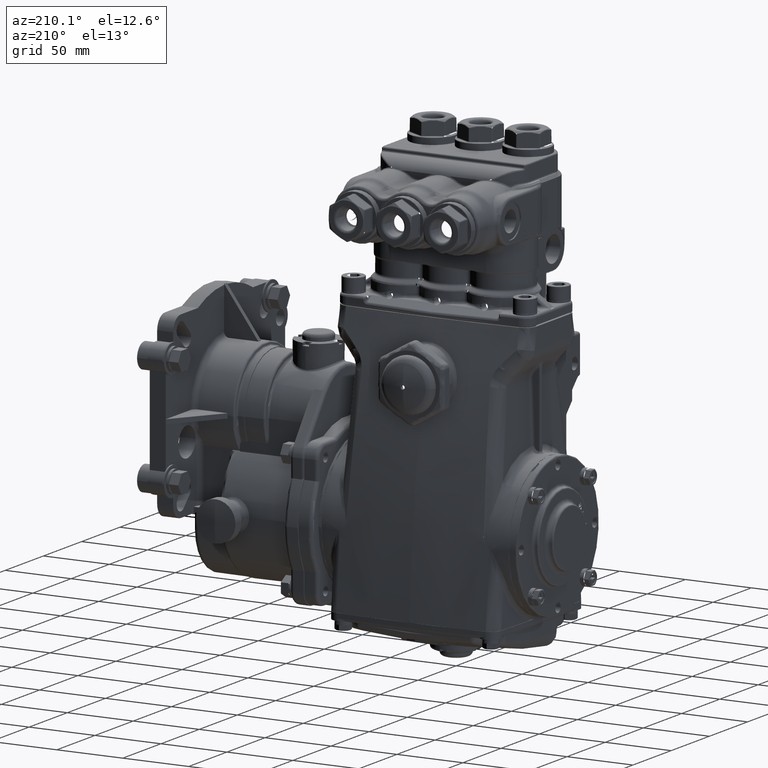
[diagram: clean part render]
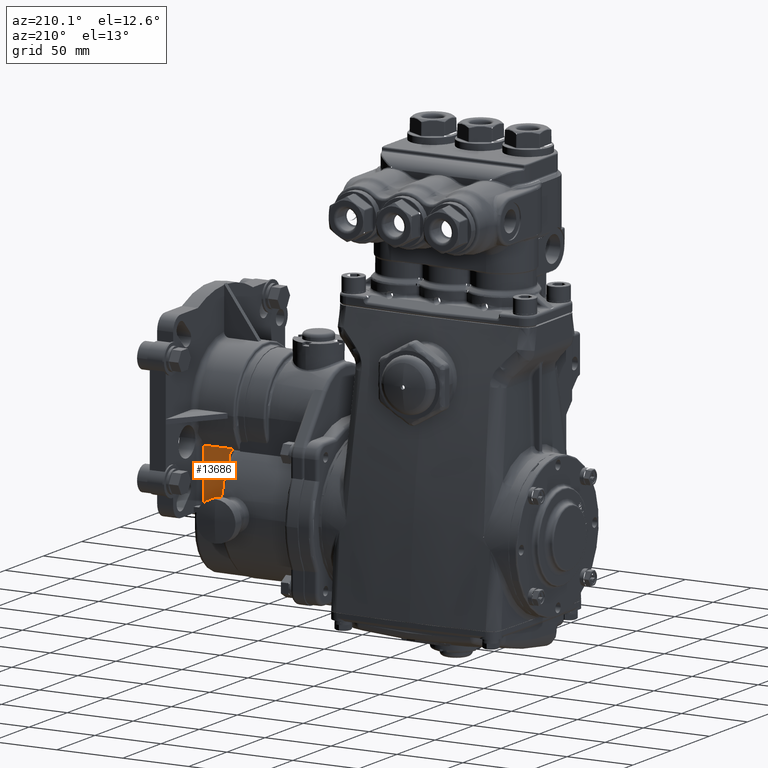
[diagram: same view with one face highlighted and labeled with its STEP entity id]
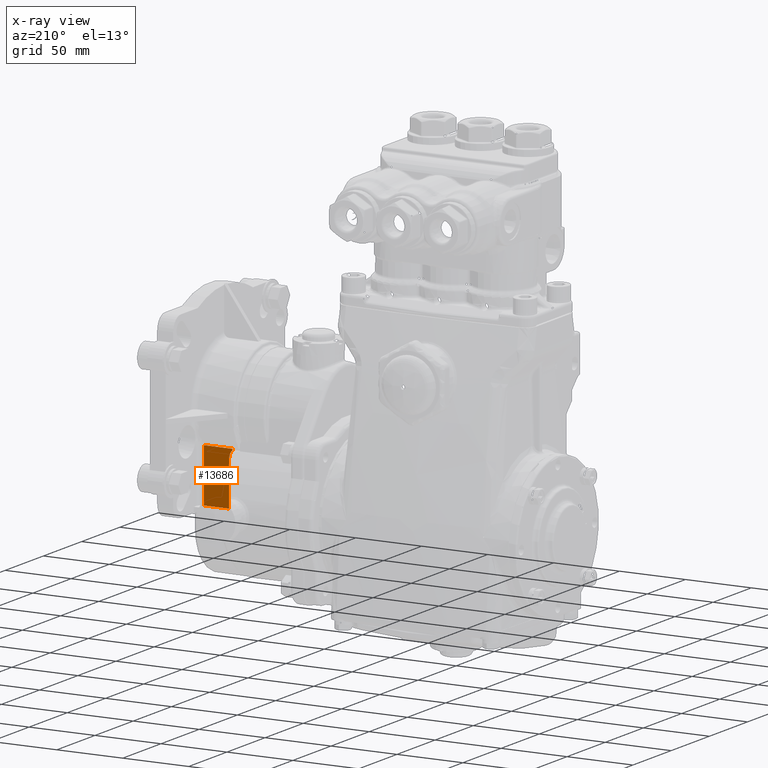
[diagram: x-ray of the same camera — body ghosted, the highlighted face saturated]
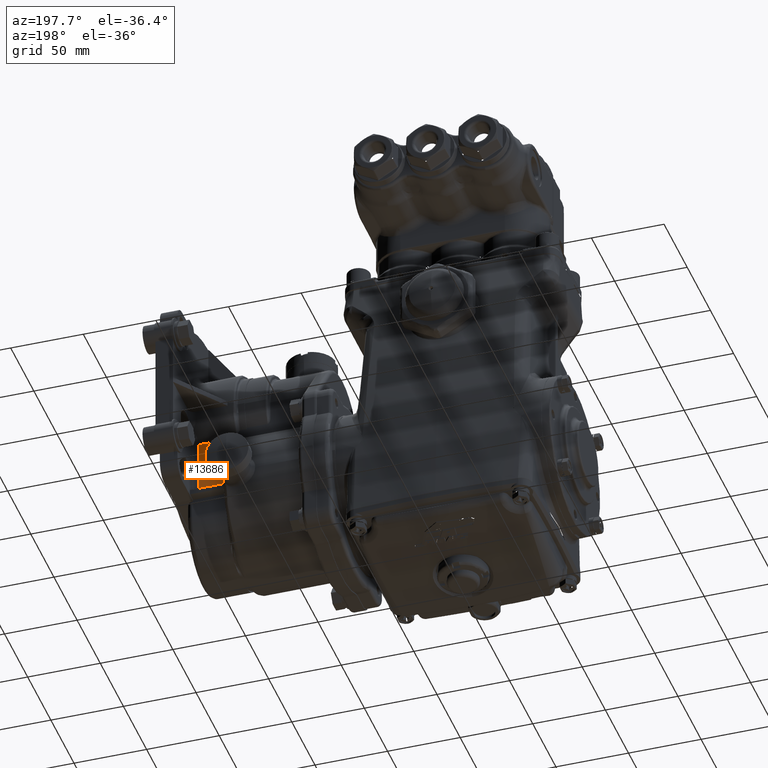
[diagram: same view with one face highlighted and labeled with its STEP entity id]
A machine part, auxiliary view. The second image highlights one B-rep face of the part: STEP entity #13686.
The next image is the same camera in x-ray: the body ghosted, the highlighted face saturated — about 0% of this face is hidden behind the body in this view.
A second angle (auxiliary view) of the same face is appended — the face is thin or edge-on in the first view.
In plain terms, the highlighted planar face has unit normal (-0, 1, 0).
Its self-contained STEP definition (entity closure, byte-faithful):
#1515 = CARTESIAN_POINT ( 'NONE',  ( 5.936998685975653167, 1.374999999999993561, 1.478393000945636304 ) ) ;
#3409 = CARTESIAN_POINT ( 'NONE',  ( 5.984173228346457485, 1.374999999999993117, 1.289207508510556321 ) ) ;
#4364 = LINE ( 'NONE', #30344, #121863 ) ;
#5307 = VERTEX_POINT ( 'NONE', #3409 ) ;
#6356 = VERTEX_POINT ( 'NONE', #9939 ) ;
#6761 = CARTESIAN_POINT ( 'NONE',  ( 6.738275590551182859, 1.374999999999993117, -0.01600000000000988132 ) ) ;
#6861 = CARTESIAN_POINT ( 'NONE',  ( 5.884173228346457840, 1.374999999999993117, 1.539699161006940820 ) ) ;
#9939 = CARTESIAN_POINT ( 'NONE',  ( 6.738275590551182859, 1.374999999999993117, -0.01600000000000988132 ) ) ;
#10766 = CARTESIAN_POINT ( 'NONE',  ( 5.953063110795142165, 1.374999999999993339, 1.447358749938365552 ) ) ;
#12601 = CARTESIAN_POINT ( 'NONE',  ( 5.974511354999098245, 1.374999999999993339, 1.381563688716898497 ) ) ;
#13686 = ADVANCED_FACE ( 'NONE', ( #111877 ), #27088, .T. ) ;
#14910 = CARTESIAN_POINT ( 'NONE',  ( 5.957550967512354134, 1.374999999999993117, 1.436722267087785054 ) ) ;
#15089 = ORIENTED_EDGE ( 'NONE', *, *, #62207, .T. ) ;
#17056 = LINE ( 'NONE', #35587, #22284 ) ;
#21840 = ORIENTED_EDGE ( 'NONE', *, *, #57068, .T. ) ;
#22284 = VECTOR ( 'NONE', #120376, 39.37007874015748143 ) ;
#27088 = PLANE ( 'NONE',  #47404 ) ;
#27215 = CARTESIAN_POINT ( 'NONE',  ( 5.917199309192588963, 1.374999999999993339, 1.506953825793217572 ) ) ;
#30344 = CARTESIAN_POINT ( 'NONE',  ( 0.5505628188770932407, 1.374999999999993117, -0.01600000000000988132 ) ) ;
#32457 = DIRECTION ( 'NONE',  ( -1.000000000000000000, -7.102626545835169598E-19, 4.324783731851683387E-18 ) ) ;
#35587 = CARTESIAN_POINT ( 'NONE',  ( 5.884173228346457840, 1.374999999999993117, -0.6840000000000044933 ) ) ;
#35725 = EDGE_CURVE ( 'NONE', #55036, #93569, #104920, .T. ) ;
#36526 = CARTESIAN_POINT ( 'NONE',  ( 5.901792264774705643, 1.374999999999993339, 1.524239884102599252 ) ) ;
#38101 = VERTEX_POINT ( 'NONE', #42845 ) ;
#39562 = ORIENTED_EDGE ( 'NONE', *, *, #96875, .F. ) ;
#42845 = CARTESIAN_POINT ( 'NONE',  ( 5.984173228346457485, 1.374999999999993117, -0.01600000000000988132 ) ) ;
#47404 = AXIS2_PLACEMENT_3D ( 'NONE', #64866, #102596, #59181 ) ;
#50493 = CARTESIAN_POINT ( 'NONE',  ( 5.884173228346457840, 1.374999999999993117, 1.580959678293455184 ) ) ;
#50650 = EDGE_CURVE ( 'NONE', #115905, #93569, #17056, .T. ) ;
#50955 = EDGE_CURVE ( 'NONE', #5307, #115905, #74709, .T. ) ;
#51335 = ORIENTED_EDGE ( 'NONE', *, *, #50955, .T. ) ;
#54356 = DIRECTION ( 'NONE',  ( -4.324783731851680306E-18, 2.775557561562890735E-17, -1.000000000000000000 ) ) ;
#54676 = CARTESIAN_POINT ( 'NONE',  ( 5.884173228346457840, 1.374999999999993117, 1.539699161006940820 ) ) ;
#55036 = VERTEX_POINT ( 'NONE', #106996 ) ;
#56687 = LINE ( 'NONE', #57885, #87921 ) ;
#57068 = EDGE_CURVE ( 'NONE', #38101, #5307, #56687, .T. ) ;
#57772 = CARTESIAN_POINT ( 'NONE',  ( 5.984173228346457485, 1.374999999999993117, 1.289207508510556321 ) ) ;
#57885 = CARTESIAN_POINT ( 'NONE',  ( 5.984173228346457485, 1.374999999999993117, -0.6840000000000044933 ) ) ;
#59181 = DIRECTION ( 'NONE',  ( -4.324783731851680306E-18, 2.775557561562890735E-17, -1.000000000000000000 ) ) ;
#60423 = VECTOR ( 'NONE', #54356, 39.37007874015748143 ) ;
#61901 = CARTESIAN_POINT ( 'NONE',  ( 5.968785228061824988, 1.374999999999992895, 1.404008736552406322 ) ) ;
#62207 = EDGE_CURVE ( 'NONE', #55036, #6356, #121814, .T. ) ;
#64866 = CARTESIAN_POINT ( 'NONE',  ( 0.5505628188770932407, 1.374999999999993117, -0.6840000000000044933 ) ) ;
#68416 = CARTESIAN_POINT ( 'NONE',  ( 5.660275590551182567, 1.374999999999993117, 1.580959678293455406 ) ) ;
#74709 = B_SPLINE_CURVE_WITH_KNOTS ( 'NONE', 3,
 ( #57772, #107262, #78849, #114737, #12601, #61901, #99672, #14910, #10766, #90404, #1515, #76998, #27215, #36526, #102721, #6861 ),
 .UNSPECIFIED., .F., .F.,
 ( 4, 2, 2, 2, 2, 2, 2, 4 ),
 ( 0.000000000000000000, 0.001768629830894860155, 0.002652944746342306929, 0.003537259661789754137, 0.004421574577237200911, 0.005305889492684647685, 0.006190204408132095326, 0.007074519323579542968 ),
 .UNSPECIFIED. ) ;
#76797 = DIRECTION ( 'NONE',  ( 1.000000000000000000, 7.102626545835169598E-19, -4.324783731851683387E-18 ) ) ;
#76998 = CARTESIAN_POINT ( 'NONE',  ( 5.924204573068982072, 1.374999999999993117, 1.497755820136478233 ) ) ;
#78849 = CARTESIAN_POINT ( 'NONE',  ( 5.982431473800675192, 1.374999999999993117, 1.335670905089819005 ) ) ;
#87921 = VECTOR ( 'NONE', #93856, 39.37007874015748143 ) ;
#90404 = CARTESIAN_POINT ( 'NONE',  ( 5.942806783638646451, 1.374999999999993339, 1.468169815497476050 ) ) ;
#93011 = VECTOR ( 'NONE', #32457, 39.37007874015748143 ) ;
#93569 = VERTEX_POINT ( 'NONE', #50493 ) ;
#93856 = DIRECTION ( 'NONE',  ( 4.324783731851680306E-18, -2.775557561562890735E-17, 1.000000000000000000 ) ) ;
#96875 = EDGE_CURVE ( 'NONE', #38101, #6356, #4364, .T. ) ;
#99672 = CARTESIAN_POINT ( 'NONE',  ( 5.965412582234972838, 1.374999999999993117, 1.415047460968727799 ) ) ;
#102596 = DIRECTION ( 'NONE',  ( -7.102626545835172487E-19, 1.000000000000000000, 2.775557561562890735E-17 ) ) ;
#102721 = CARTESIAN_POINT ( 'NONE',  ( 5.893337016358288771, 1.374999999999993339, 1.532372476221214974 ) ) ;
#104920 = LINE ( 'NONE', #68416, #93011 ) ;
#106996 = CARTESIAN_POINT ( 'NONE',  ( 6.738275590551182859, 1.374999999999993117, 1.580959678293455406 ) ) ;
#107262 = CARTESIAN_POINT ( 'NONE',  ( 5.984173228346460149, 1.374999999999993561, 1.312521653162780133 ) ) ;
#109418 = ORIENTED_EDGE ( 'NONE', *, *, #50650, .T. ) ;
#111877 = FACE_OUTER_BOUND ( 'NONE', #111995, .T. ) ;
#111995 = EDGE_LOOP ( 'NONE', ( #21840, #51335, #109418, #113405, #15089, #39562 ) ) ;
#113405 = ORIENTED_EDGE ( 'NONE', *, *, #35725, .F. ) ;
#114737 = CARTESIAN_POINT ( 'NONE',  ( 5.976869346015719842, 1.374999999999993339, 1.370115552804703540 ) ) ;
#115905 = VERTEX_POINT ( 'NONE', #54676 ) ;
#120376 = DIRECTION ( 'NONE',  ( 4.324783731851680306E-18, -2.775557561562890735E-17, 1.000000000000000000 ) ) ;
#121814 = LINE ( 'NONE', #6761, #60423 ) ;
#121863 = VECTOR ( 'NONE', #76797, 39.37007874015748143 ) ;